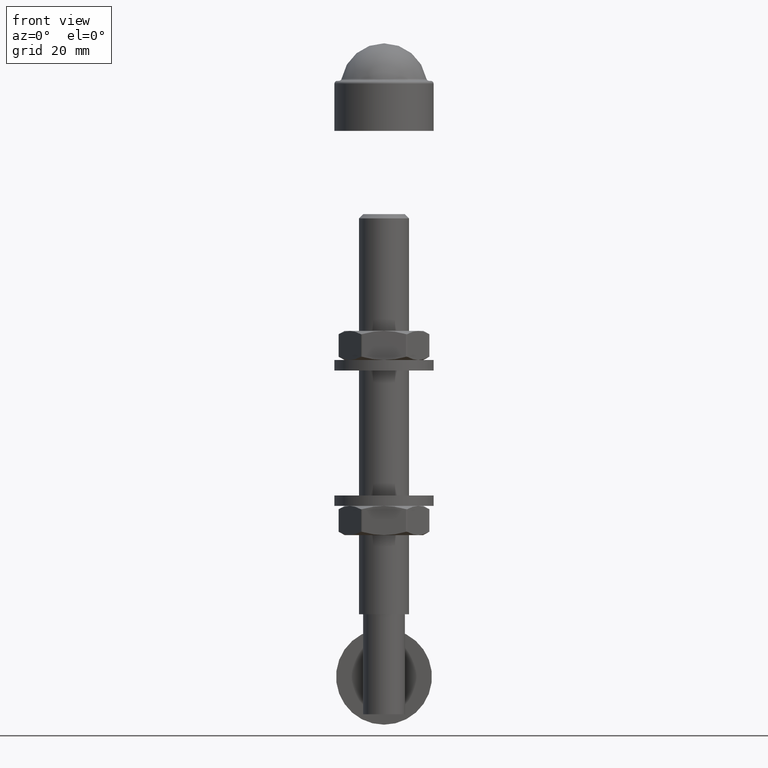
[diagram: clean part render]
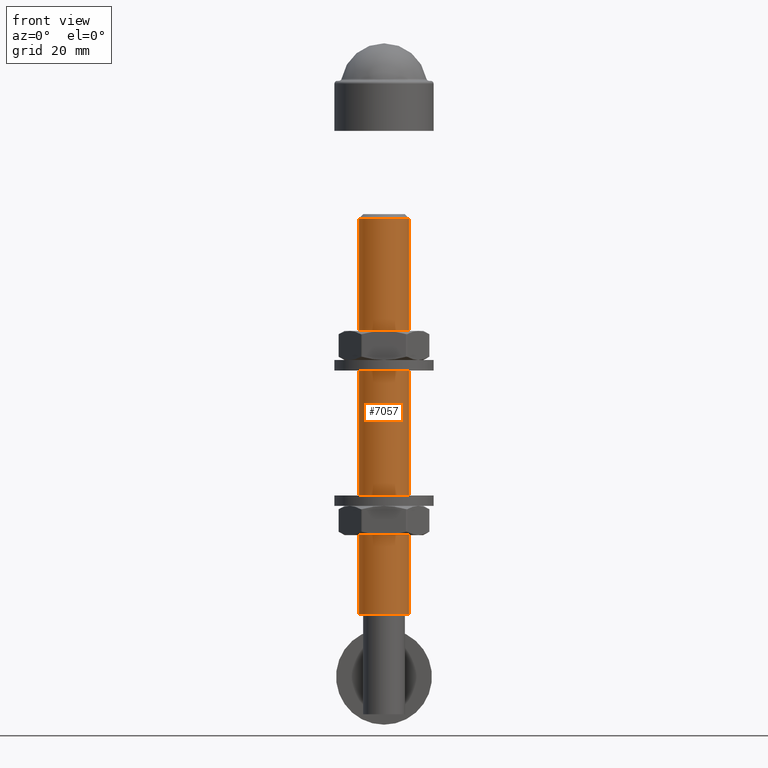
[diagram: same view with one face highlighted and labeled with its STEP entity id]
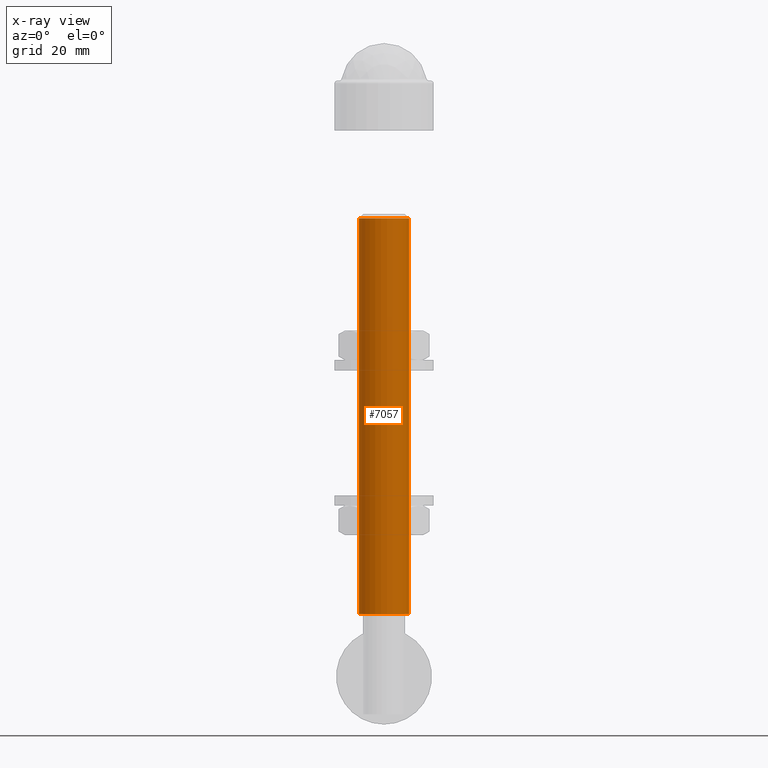
[diagram: x-ray of the same camera — body ghosted, the highlighted face saturated]
A machine part, front view. The second image highlights one B-rep face of the part: STEP entity #7057.
The next image is the same camera in x-ray: the body ghosted, the highlighted face saturated — about 0% of this face is hidden behind the body in this view.
In plain terms, the highlighted cylindrical surface (bore or boss wall) has radius 6 mm, axis along (-0, -0, -1).
Its self-contained STEP definition (entity closure, byte-faithful):
#40 = EDGE_CURVE ( 'NONE', #12934, #12934, #8247, .T. ) ;
#1215 = FACE_OUTER_BOUND ( 'NONE', #14533, .T. ) ;
#2749 = DIRECTION ( 'NONE',  ( -0.000000000000000000, -0.000000000000000000, -1.000000000000000000 ) ) ;
#3213 = CIRCLE ( 'NONE', #5947, 6.000000000000004441 ) ;
#3735 = VERTEX_POINT ( 'NONE', #4119 ) ;
#4119 = CARTESIAN_POINT ( 'NONE',  ( -6.000000000000004441, -1.898202538678397636E-14, -36.00000000000000711 ) ) ;
#4681 = CYLINDRICAL_SURFACE ( 'NONE', #4965, 6.000000000000004441 ) ;
#4965 = AXIS2_PLACEMENT_3D ( 'NONE', #5191, #2749, #7794 ) ;
#5191 = CARTESIAN_POINT ( 'NONE',  ( 0.000000000000000000, -1.898202538678397636E-14, -60.00000000000000000 ) ) ;
#5353 = DIRECTION ( 'NONE',  ( -0.000000000000000000, -0.000000000000000000, -1.000000000000000000 ) ) ;
#5947 = AXIS2_PLACEMENT_3D ( 'NONE', #7490, #9861, #13497 ) ;
#7057 = ADVANCED_FACE ( 'NONE', ( #1215, #10209 ), #4681, .T. ) ;
#7357 = ORIENTED_EDGE ( 'NONE', *, *, #40, .T. ) ;
#7490 = CARTESIAN_POINT ( 'NONE',  ( 0.000000000000000000, -1.898202538678397636E-14, -36.00000000000000711 ) ) ;
#7612 = EDGE_LOOP ( 'NONE', ( #13655 ) ) ;
#7683 = DIRECTION ( 'NONE',  ( 1.000000000000000000, 0.000000000000000000, 0.000000000000000000 ) ) ;
#7794 = DIRECTION ( 'NONE',  ( -1.000000000000000000, 0.000000000000000000, 0.000000000000000000 ) ) ;
#8247 = CIRCLE ( 'NONE', #9356, 6.000000000000004441 ) ;
#9356 = AXIS2_PLACEMENT_3D ( 'NONE', #14950, #5353, #7683 ) ;
#9861 = DIRECTION ( 'NONE',  ( -0.000000000000000000, -0.000000000000000000, -1.000000000000000000 ) ) ;
#10209 = FACE_OUTER_BOUND ( 'NONE', #7612, .T. ) ;
#12934 = VERTEX_POINT ( 'NONE', #13889 ) ;
#13497 = DIRECTION ( 'NONE',  ( -1.000000000000000000, 0.000000000000000000, 0.000000000000000000 ) ) ;
#13655 = ORIENTED_EDGE ( 'NONE', *, *, #13720, .F. ) ;
#13720 = EDGE_CURVE ( 'NONE', #3735, #3735, #3213, .T. ) ;
#13889 = CARTESIAN_POINT ( 'NONE',  ( 6.000000000000004441, -1.898202538678397636E-14, 59.00000000000000000 ) ) ;
#14533 = EDGE_LOOP ( 'NONE', ( #7357 ) ) ;
#14950 = CARTESIAN_POINT ( 'NONE',  ( 0.000000000000000000, -1.898202538678397636E-14, 59.00000000000000000 ) ) ;